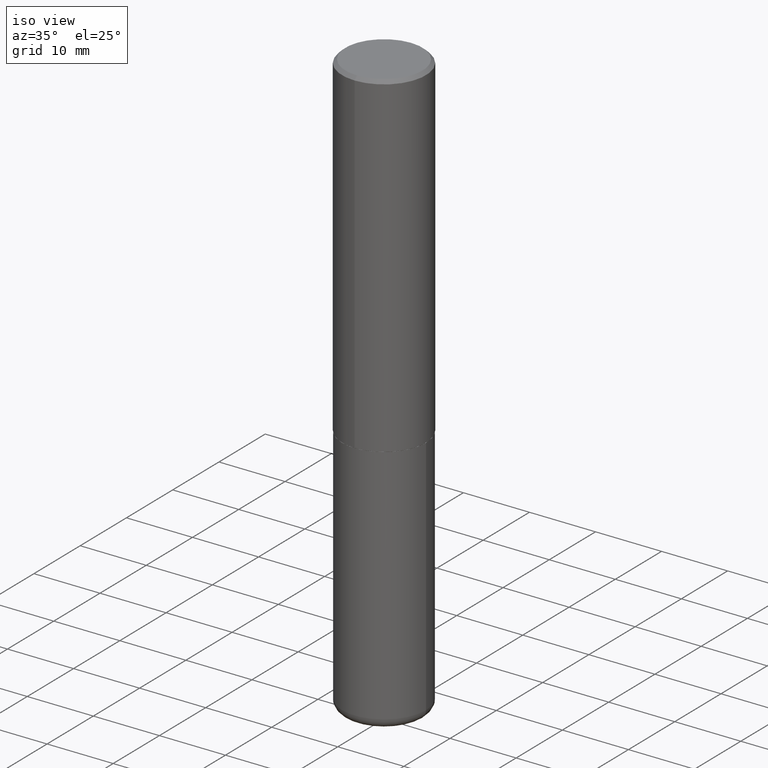
[diagram: clean part render]
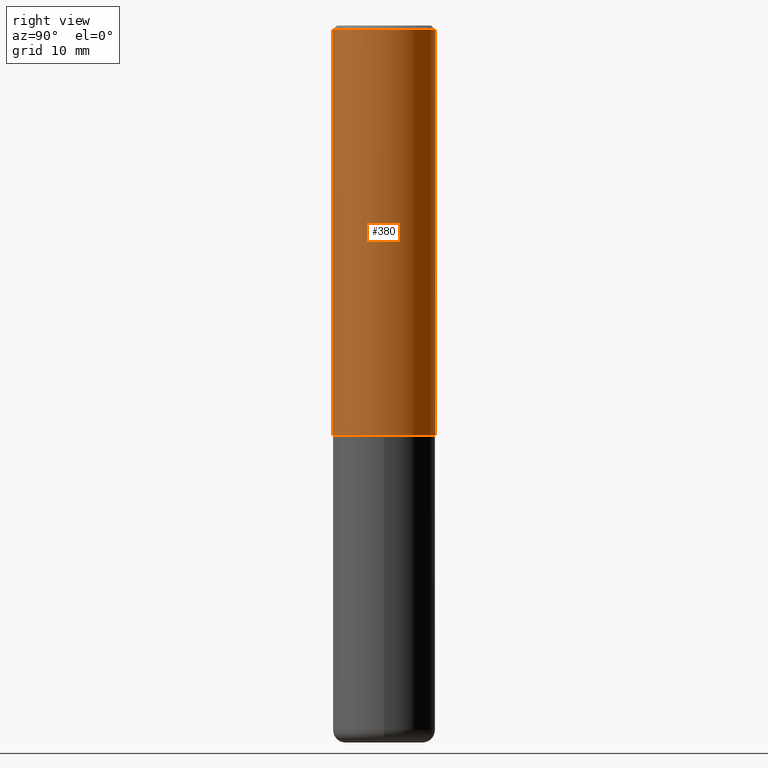
[diagram: tour spotlight — one face highlighted and labeled with its STEP entity id]
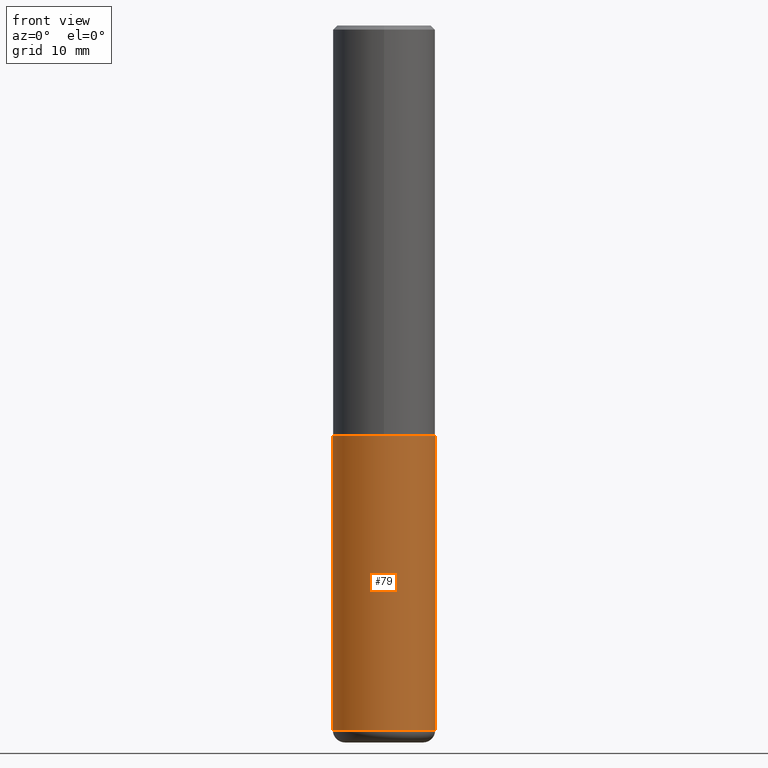
[diagram: tour spotlight — one face highlighted and labeled with its STEP entity id]
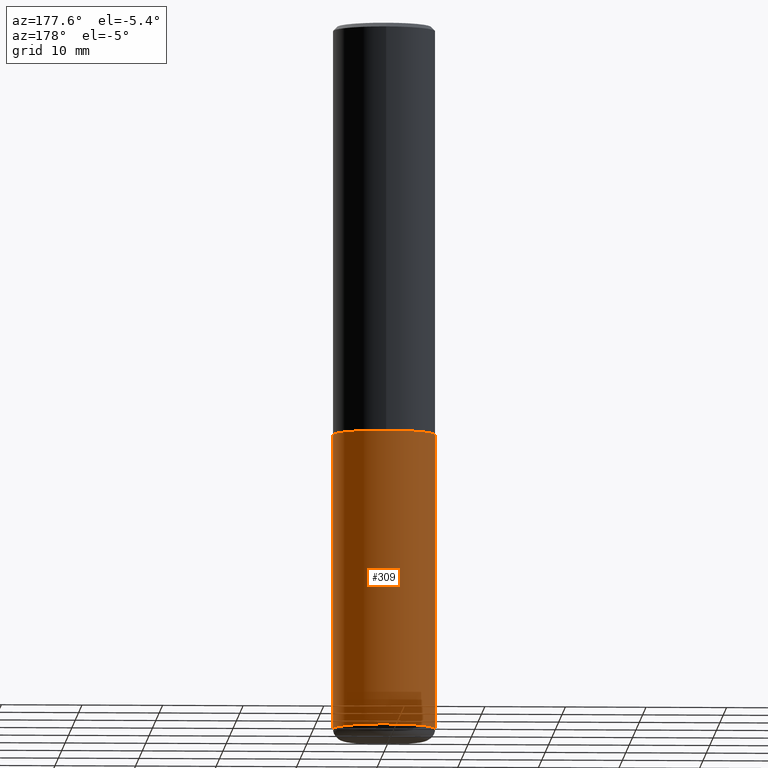
[diagram: tour spotlight — one face highlighted and labeled with its STEP entity id]
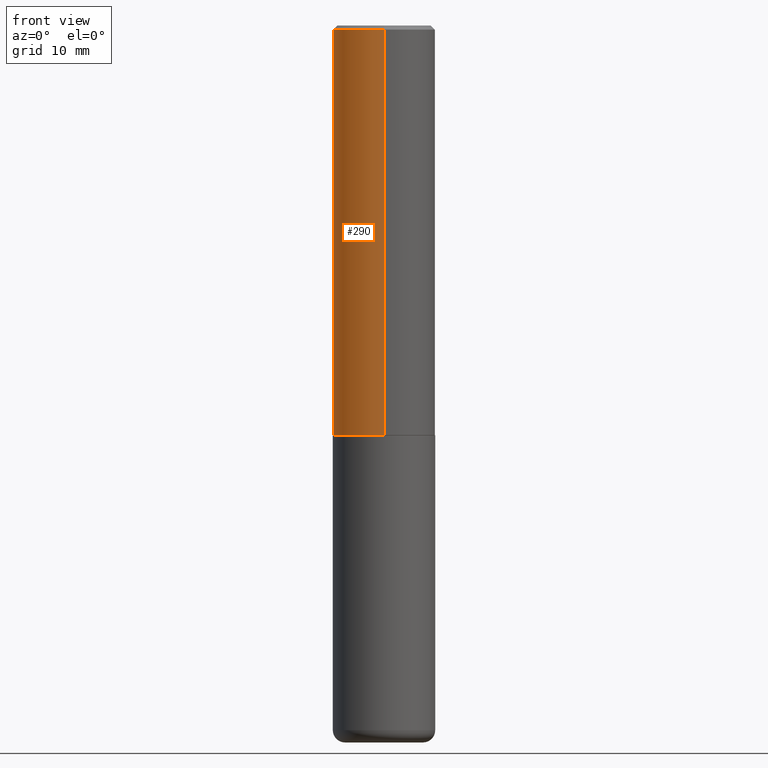
[diagram: tour spotlight — one face highlighted and labeled with its STEP entity id]
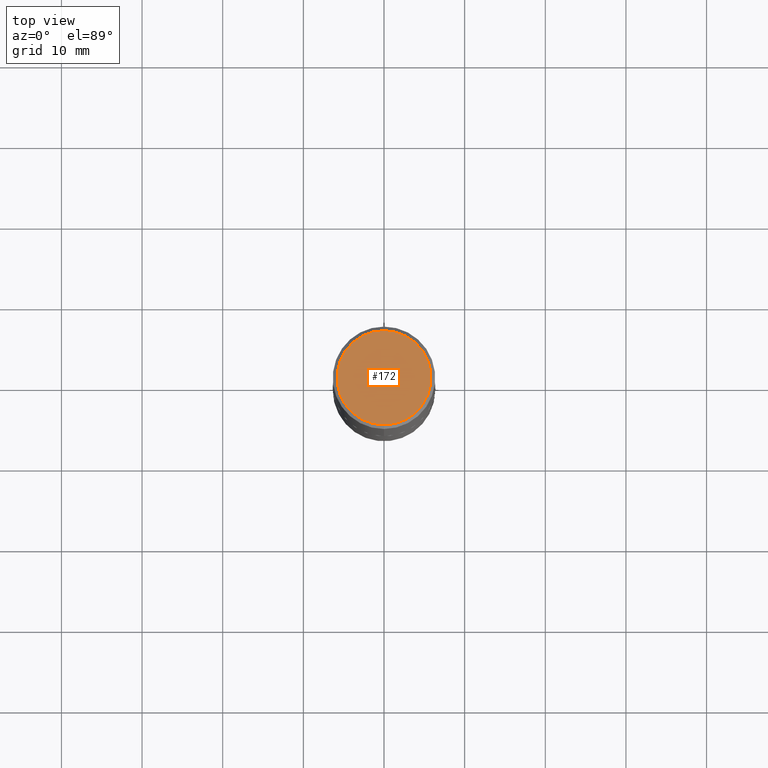
[diagram: tour spotlight — one face highlighted and labeled with its STEP entity id]
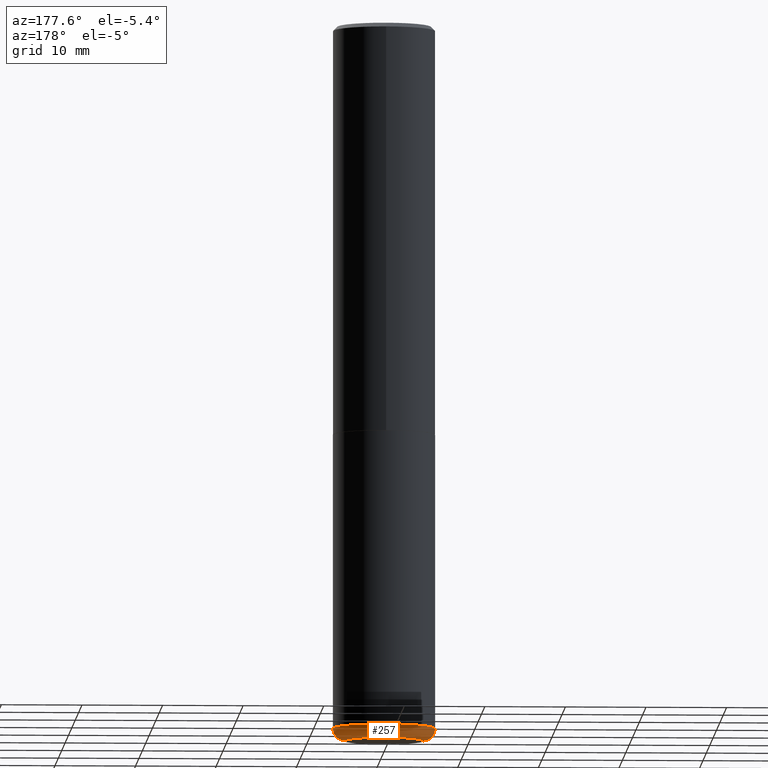
[diagram: tour spotlight — one face highlighted and labeled with its STEP entity id]
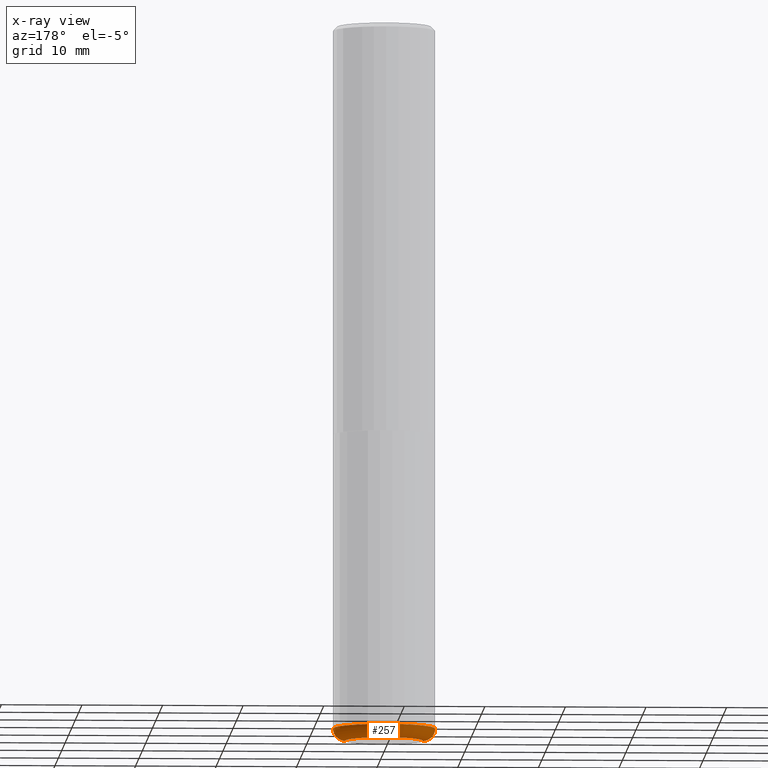
[diagram: x-ray of the same camera — body ghosted, this tour face saturated]
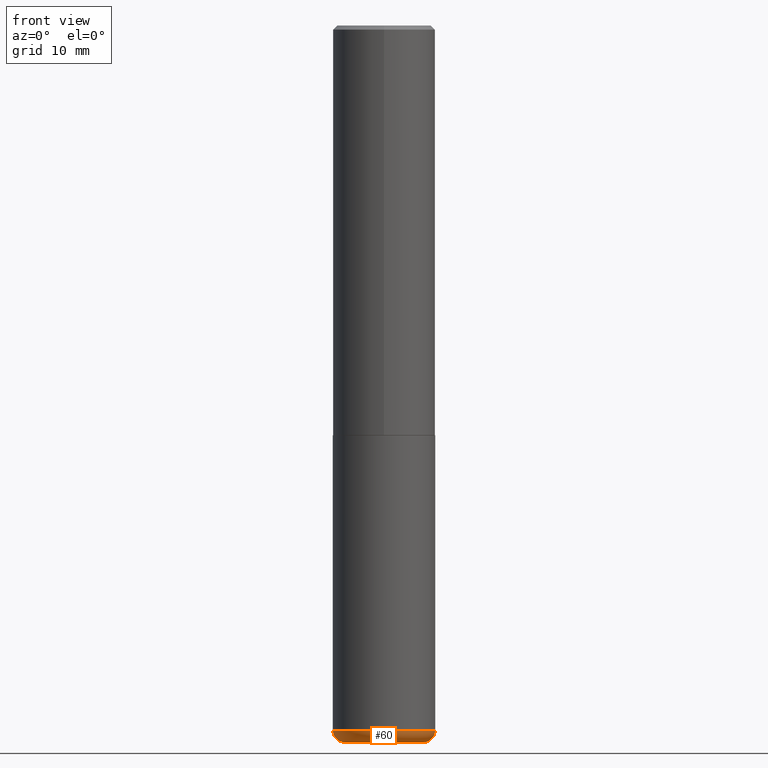
[diagram: tour spotlight — one face highlighted and labeled with its STEP entity id]
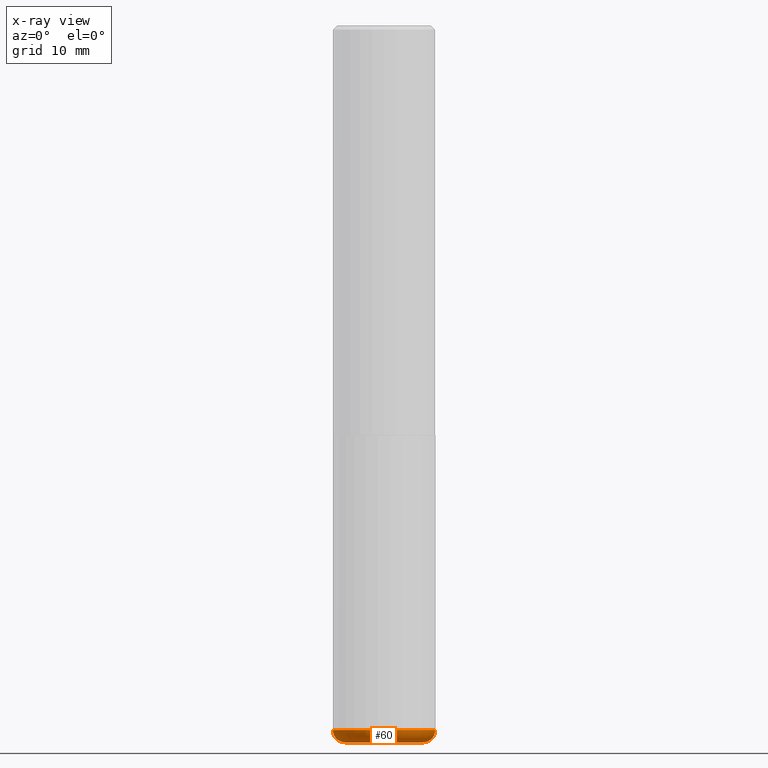
[diagram: x-ray of the same camera — body ghosted, this tour face saturated]
A machine part: a face-by-face anatomy tour. The part has 14 B-rep faces; the first image is the clean iso view, then the 7 largest visible faces are spotlighted one at a time (largest first), each with its STEP entity span.

Face 1 — right view, entity #380. In plain terms, the highlighted cylindrical surface (partial cylindrical patch) has radius 6.35 mm, axis along (-0, 0, 1).
Definition (entity closure, byte-faithful):
#7 = CARTESIAN_POINT ( 'NONE',  ( -1.745740669421519543E-15, -0.2500000000000072720, -1.998999999999999000 ) ) ;
#17 = DIRECTION ( 'NONE',  ( -2.444078991372175563E-29, 3.493471632758652550E-15, 1.000000000000000000 ) ) ;
#18 = ORIENTED_EDGE ( 'NONE', *, *, #42, .T. ) ;
#42 = EDGE_CURVE ( 'NONE', #93, #253, #389, .T. ) ;
#61 = ORIENTED_EDGE ( 'NONE', *, *, #334, .F. ) ;
#86 = CARTESIAN_POINT ( 'NONE',  ( 0.000000000000000000, 0.000000000000000000, 0.000000000000000000 ) ) ;
#92 = CARTESIAN_POINT ( 'NONE',  ( 1.776356839400276103E-15, 0.2499999999999932832, -1.999000000000000776 ) ) ;
#93 = VERTEX_POINT ( 'NONE', #7 ) ;
#105 = ORIENTED_EDGE ( 'NONE', *, *, #340, .T. ) ;
#140 = CARTESIAN_POINT ( 'NONE',  ( 4.885713903752978284E-29, -6.983449793884546288E-15, -1.998999999999999888 ) ) ;
#147 = FACE_OUTER_BOUND ( 'NONE', #248, .T. ) ;
#173 = VERTEX_POINT ( 'NONE', #359 ) ;
#175 = DIRECTION ( 'NONE',  ( -2.444078991372175563E-29, 3.493471632758652550E-15, 1.000000000000000000 ) ) ;
#201 = DIRECTION ( 'NONE',  ( -2.444078991372175563E-29, 3.493471632758652550E-15, 1.000000000000000000 ) ) ;
#202 = DIRECTION ( 'NONE',  ( -6.982962677686265922E-15, -1.000000000000000000, 3.278217592397112312E-15 ) ) ;
#207 = AXIS2_PLACEMENT_3D ( 'NONE', #86, #201, #319 ) ;
#211 = DIRECTION ( 'NONE',  ( -2.444078991372175563E-29, 3.493471632758652550E-15, 1.000000000000000000 ) ) ;
#219 = DIRECTION ( 'NONE',  ( -2.444078991372175563E-29, 3.493471632758652550E-15, 1.000000000000000000 ) ) ;
#225 = ORIENTED_EDGE ( 'NONE', *, *, #233, .F. ) ;
#233 = EDGE_CURVE ( 'NONE', #310, #173, #358, .T. ) ;
#235 = CARTESIAN_POINT ( 'NONE',  ( 1.776356839400251254E-15, 0.2500000000000001110, -8.733679081896635319E-16 ) ) ;
#248 = EDGE_LOOP ( 'NONE', ( #18, #105, #225, #61 ) ) ;
#249 = LINE ( 'NONE', #371, #284 ) ;
#253 = VERTEX_POINT ( 'NONE', #92 ) ;
#275 = CARTESIAN_POINT ( 'NONE',  ( -1.715124499442882496E-15, -0.2500000000000001110, -0.01999999999999921632 ) ) ;
#284 = VECTOR ( 'NONE', #219, 39.37007874015748143 ) ;
#295 = AXIS2_PLACEMENT_3D ( 'NONE', #140, #175, #202 ) ;
#302 = VECTOR ( 'NONE', #17, 39.37007874015748143 ) ;
#310 = VERTEX_POINT ( 'NONE', #275 ) ;
#319 = DIRECTION ( 'NONE',  ( -6.982962677686266711E-15, -1.000000000000000000, 3.493471632758652550E-15 ) ) ;
#322 = CYLINDRICAL_SURFACE ( 'NONE', #207, 0.2500000000000001110 ) ;
#329 = DIRECTION ( 'NONE',  ( -6.982962677686265133E-15, -1.000000000000000000, 3.500180241882336472E-15 ) ) ;
#334 = EDGE_CURVE ( 'NONE', #93, #310, #249, .T. ) ;
#340 = EDGE_CURVE ( 'NONE', #253, #173, #399, .T. ) ;
#358 = CIRCLE ( 'NONE', #367, 0.2500000000000000555 ) ;
#359 = CARTESIAN_POINT ( 'NONE',  ( 1.745740669421567269E-15, 0.2499999999999999722, -0.02000000000000096492 ) ) ;
#367 = AXIS2_PLACEMENT_3D ( 'NONE', #375, #211, #329 ) ;
#371 = CARTESIAN_POINT ( 'NONE',  ( -1.745740669421567467E-15, -0.2500000000000001110, 8.733679081896635319E-16 ) ) ;
#375 = CARTESIAN_POINT ( 'NONE',  ( 4.888157982744373443E-31, -6.986943265517335816E-17, -0.02000000000000009062 ) ) ;
#380 = ADVANCED_FACE ( 'NONE', ( #147 ), #322, .T. ) ;
#389 = CIRCLE ( 'NONE', #295, 0.2500000000000002776 ) ;
#399 = LINE ( 'NONE', #235, #302 ) ;

Face 2 — front view, entity #79. In plain terms, the highlighted cylindrical surface (partial cylindrical patch) has radius 6.35 mm, axis along (-0, 0, 1).
Definition (entity closure, byte-faithful):
#1 = VECTOR ( 'NONE', #250, 39.37007874015748143 ) ;
#6 = EDGE_CURVE ( 'NONE', #164, #407, #315, .T. ) ;
#16 = AXIS2_PLACEMENT_3D ( 'NONE', #128, #95, #413 ) ;
#25 = CIRCLE ( 'NONE', #247, 0.2500000000000000000 ) ;
#36 = CARTESIAN_POINT ( 'NONE',  ( 0.2500000000000000000, -8.728703347107857054E-15, -2.000000000000000000 ) ) ;
#72 = DIRECTION ( 'NONE',  ( -2.445468806185136597E-29, 3.491481338843145583E-15, 1.000000000000000000 ) ) ;
#78 = DIRECTION ( 'NONE',  ( -2.445468806185136877E-29, 3.491481338843145188E-15, 1.000000000000000000 ) ) ;
#79 = ADVANCED_FACE ( 'NONE', ( #326 ), #81, .T. ) ;
#81 = CYLINDRICAL_SURFACE ( 'NONE', #416, 0.2500000000000000000 ) ;
#88 = ORIENTED_EDGE ( 'NONE', *, *, #190, .F. ) ;
#95 = DIRECTION ( 'NONE',  ( -2.445468806185136597E-29, 3.491481338843145583E-15, 1.000000000000000000 ) ) ;
#103 = EDGE_LOOP ( 'NONE', ( #88, #417, #346, #222 ) ) ;
#118 = CARTESIAN_POINT ( 'NONE',  ( 0.2499999999999999722, -1.375643647504198770E-14, -3.439999999999999947 ) ) ;
#127 = VERTEX_POINT ( 'NONE', #392 ) ;
#128 = CARTESIAN_POINT ( 'NONE',  ( 4.890937612370273194E-29, -6.982962677686291165E-15, -2.000000000000000000 ) ) ;
#160 = VECTOR ( 'NONE', #78, 39.37007874015748143 ) ;
#164 = VERTEX_POINT ( 'NONE', #118 ) ;
#166 = CIRCLE ( 'NONE', #16, 0.2500000000000000000 ) ;
#190 = EDGE_CURVE ( 'NONE', #214, #127, #208, .T. ) ;
#208 = LINE ( 'NONE', #216, #1 ) ;
#214 = VERTEX_POINT ( 'NONE', #372 ) ;
#216 = CARTESIAN_POINT ( 'NONE',  ( -0.2500000000000000000, 1.776356839400250465E-15, -1.229733772563726445E-29 ) ) ;
#222 = ORIENTED_EDGE ( 'NONE', *, *, #245, .F. ) ;
#245 = EDGE_CURVE ( 'NONE', #127, #407, #166, .T. ) ;
#247 = AXIS2_PLACEMENT_3D ( 'NONE', #330, #353, #294 ) ;
#250 = DIRECTION ( 'NONE',  ( -2.445468806185136877E-29, 3.491481338843145188E-15, 1.000000000000000000 ) ) ;
#265 = DIRECTION ( 'NONE',  ( 1.000000000000000000, -6.982962677686266711E-15, 4.876176775795935793E-29 ) ) ;
#294 = DIRECTION ( 'NONE',  ( 1.000000000000000000, -6.982962677686270655E-15, 0.000000000000000000 ) ) ;
#297 = CARTESIAN_POINT ( 'NONE',  ( 0.000000000000000000, 0.000000000000000000, 0.000000000000000000 ) ) ;
#315 = LINE ( 'NONE', #318, #160 ) ;
#318 = CARTESIAN_POINT ( 'NONE',  ( 0.2500000000000000000, -1.745740669421566678E-15, 1.219044193948983948E-29 ) ) ;
#326 = FACE_OUTER_BOUND ( 'NONE', #103, .T. ) ;
#330 = CARTESIAN_POINT ( 'NONE',  ( 8.412412693276869938E-29, -1.201069580562042103E-14, -3.439999999999999947 ) ) ;
#346 = ORIENTED_EDGE ( 'NONE', *, *, #6, .T. ) ;
#353 = DIRECTION ( 'NONE',  ( -2.445468806185136597E-29, 3.491481338843145583E-15, 1.000000000000000000 ) ) ;
#372 = CARTESIAN_POINT ( 'NONE',  ( -0.2499999999999999722, -1.023433896622016898E-14, -3.439999999999999947 ) ) ;
#392 = CARTESIAN_POINT ( 'NONE',  ( -0.2500000000000000000, -7.720472402253106025E-15, -2.000000000000000000 ) ) ;
#405 = EDGE_CURVE ( 'NONE', #214, #164, #25, .T. ) ;
#407 = VERTEX_POINT ( 'NONE', #36 ) ;
#413 = DIRECTION ( 'NONE',  ( 1.000000000000000000, -6.982962677686266711E-15, 0.000000000000000000 ) ) ;
#416 = AXIS2_PLACEMENT_3D ( 'NONE', #297, #72, #265 ) ;
#417 = ORIENTED_EDGE ( 'NONE', *, *, #405, .T. ) ;

Face 3 — auxiliary view, entity #309. In plain terms, the highlighted cylindrical surface (partial cylindrical patch) has radius 6.35 mm, axis along (-0, 0, 1).
Definition (entity closure, byte-faithful):
#1 = VECTOR ( 'NONE', #250, 39.37007874015748143 ) ;
#5 = ORIENTED_EDGE ( 'NONE', *, *, #6, .F. ) ;
#6 = EDGE_CURVE ( 'NONE', #164, #407, #315, .T. ) ;
#11 = CARTESIAN_POINT ( 'NONE',  ( 8.412412693276869938E-29, -1.201069580562042103E-14, -3.439999999999999947 ) ) ;
#19 = DIRECTION ( 'NONE',  ( -2.445468806185136597E-29, 3.491481338843145583E-15, 1.000000000000000000 ) ) ;
#36 = CARTESIAN_POINT ( 'NONE',  ( 0.2500000000000000000, -8.728703347107857054E-15, -2.000000000000000000 ) ) ;
#39 = DIRECTION ( 'NONE',  ( 1.000000000000000000, -6.982962677686266711E-15, 0.000000000000000000 ) ) ;
#43 = CARTESIAN_POINT ( 'NONE',  ( 4.890937612370273194E-29, -6.982962677686291165E-15, -2.000000000000000000 ) ) ;
#74 = CIRCLE ( 'NONE', #90, 0.2500000000000000000 ) ;
#78 = DIRECTION ( 'NONE',  ( -2.445468806185136877E-29, 3.491481338843145188E-15, 1.000000000000000000 ) ) ;
#90 = AXIS2_PLACEMENT_3D ( 'NONE', #43, #321, #39 ) ;
#96 = EDGE_LOOP ( 'NONE', ( #156, #163, #379, #5 ) ) ;
#99 = FACE_OUTER_BOUND ( 'NONE', #96, .T. ) ;
#118 = CARTESIAN_POINT ( 'NONE',  ( 0.2499999999999999722, -1.375643647504198770E-14, -3.439999999999999947 ) ) ;
#127 = VERTEX_POINT ( 'NONE', #392 ) ;
#129 = EDGE_CURVE ( 'NONE', #407, #127, #74, .T. ) ;
#144 = AXIS2_PLACEMENT_3D ( 'NONE', #192, #19, #151 ) ;
#151 = DIRECTION ( 'NONE',  ( 1.000000000000000000, -6.982962677686266711E-15, 4.876176775795935793E-29 ) ) ;
#153 = AXIS2_PLACEMENT_3D ( 'NONE', #11, #171, #360 ) ;
#156 = ORIENTED_EDGE ( 'NONE', *, *, #344, .T. ) ;
#160 = VECTOR ( 'NONE', #78, 39.37007874015748143 ) ;
#163 = ORIENTED_EDGE ( 'NONE', *, *, #190, .T. ) ;
#164 = VERTEX_POINT ( 'NONE', #118 ) ;
#171 = DIRECTION ( 'NONE',  ( -2.445468806185136597E-29, 3.491481338843145583E-15, 1.000000000000000000 ) ) ;
#190 = EDGE_CURVE ( 'NONE', #214, #127, #208, .T. ) ;
#192 = CARTESIAN_POINT ( 'NONE',  ( 0.000000000000000000, 0.000000000000000000, 0.000000000000000000 ) ) ;
#208 = LINE ( 'NONE', #216, #1 ) ;
#214 = VERTEX_POINT ( 'NONE', #372 ) ;
#216 = CARTESIAN_POINT ( 'NONE',  ( -0.2500000000000000000, 1.776356839400250465E-15, -1.229733772563726445E-29 ) ) ;
#224 = CYLINDRICAL_SURFACE ( 'NONE', #144, 0.2500000000000000000 ) ;
#250 = DIRECTION ( 'NONE',  ( -2.445468806185136877E-29, 3.491481338843145188E-15, 1.000000000000000000 ) ) ;
#309 = ADVANCED_FACE ( 'NONE', ( #99 ), #224, .T. ) ;
#315 = LINE ( 'NONE', #318, #160 ) ;
#318 = CARTESIAN_POINT ( 'NONE',  ( 0.2500000000000000000, -1.745740669421566678E-15, 1.219044193948983948E-29 ) ) ;
#321 = DIRECTION ( 'NONE',  ( -2.445468806185136597E-29, 3.491481338843145583E-15, 1.000000000000000000 ) ) ;
#325 = CIRCLE ( 'NONE', #153, 0.2500000000000000000 ) ;
#344 = EDGE_CURVE ( 'NONE', #164, #214, #325, .T. ) ;
#360 = DIRECTION ( 'NONE',  ( 1.000000000000000000, -6.982962677686270655E-15, 0.000000000000000000 ) ) ;
#372 = CARTESIAN_POINT ( 'NONE',  ( -0.2499999999999999722, -1.023433896622016898E-14, -3.439999999999999947 ) ) ;
#379 = ORIENTED_EDGE ( 'NONE', *, *, #129, .F. ) ;
#392 = CARTESIAN_POINT ( 'NONE',  ( -0.2500000000000000000, -7.720472402253106025E-15, -2.000000000000000000 ) ) ;
#407 = VERTEX_POINT ( 'NONE', #36 ) ;

Face 4 — front view, entity #290. In plain terms, the highlighted cylindrical surface (partial cylindrical patch) has radius 6.35 mm, axis along (-0, 0, 1).
Definition (entity closure, byte-faithful):
#7 = CARTESIAN_POINT ( 'NONE',  ( -1.745740669421519543E-15, -0.2500000000000072720, -1.998999999999999000 ) ) ;
#17 = DIRECTION ( 'NONE',  ( -2.444078991372175563E-29, 3.493471632758652550E-15, 1.000000000000000000 ) ) ;
#26 = DIRECTION ( 'NONE',  ( -2.444078991372175563E-29, 3.493471632758652550E-15, 1.000000000000000000 ) ) ;
#59 = DIRECTION ( 'NONE',  ( -6.982962677686265922E-15, -1.000000000000000000, 3.278217592397112312E-15 ) ) ;
#68 = ORIENTED_EDGE ( 'NONE', *, *, #334, .T. ) ;
#92 = CARTESIAN_POINT ( 'NONE',  ( 1.776356839400276103E-15, 0.2499999999999932832, -1.999000000000000776 ) ) ;
#93 = VERTEX_POINT ( 'NONE', #7 ) ;
#173 = VERTEX_POINT ( 'NONE', #359 ) ;
#179 = ORIENTED_EDGE ( 'NONE', *, *, #206, .T. ) ;
#182 = AXIS2_PLACEMENT_3D ( 'NONE', #378, #341, #246 ) ;
#187 = CARTESIAN_POINT ( 'NONE',  ( 4.885713903752978284E-29, -6.983449793884546288E-15, -1.998999999999999888 ) ) ;
#189 = AXIS2_PLACEMENT_3D ( 'NONE', #272, #242, #364 ) ;
#206 = EDGE_CURVE ( 'NONE', #253, #93, #314, .T. ) ;
#219 = DIRECTION ( 'NONE',  ( -2.444078991372175563E-29, 3.493471632758652550E-15, 1.000000000000000000 ) ) ;
#235 = CARTESIAN_POINT ( 'NONE',  ( 1.776356839400251254E-15, 0.2500000000000001110, -8.733679081896635319E-16 ) ) ;
#240 = ORIENTED_EDGE ( 'NONE', *, *, #362, .F. ) ;
#242 = DIRECTION ( 'NONE',  ( -2.444078991372175563E-29, 3.493471632758652550E-15, 1.000000000000000000 ) ) ;
#246 = DIRECTION ( 'NONE',  ( -6.982962677686266711E-15, -1.000000000000000000, 3.493471632758652550E-15 ) ) ;
#249 = LINE ( 'NONE', #371, #284 ) ;
#253 = VERTEX_POINT ( 'NONE', #92 ) ;
#255 = CYLINDRICAL_SURFACE ( 'NONE', #182, 0.2500000000000001110 ) ;
#270 = ORIENTED_EDGE ( 'NONE', *, *, #340, .F. ) ;
#272 = CARTESIAN_POINT ( 'NONE',  ( 4.888157982744373443E-31, -6.986943265517335816E-17, -0.02000000000000009062 ) ) ;
#275 = CARTESIAN_POINT ( 'NONE',  ( -1.715124499442882496E-15, -0.2500000000000001110, -0.01999999999999921632 ) ) ;
#284 = VECTOR ( 'NONE', #219, 39.37007874015748143 ) ;
#290 = ADVANCED_FACE ( 'NONE', ( #415 ), #255, .T. ) ;
#302 = VECTOR ( 'NONE', #17, 39.37007874015748143 ) ;
#310 = VERTEX_POINT ( 'NONE', #275 ) ;
#314 = CIRCLE ( 'NONE', #374, 0.2500000000000002776 ) ;
#334 = EDGE_CURVE ( 'NONE', #93, #310, #249, .T. ) ;
#340 = EDGE_CURVE ( 'NONE', #253, #173, #399, .T. ) ;
#341 = DIRECTION ( 'NONE',  ( -2.444078991372175563E-29, 3.493471632758652550E-15, 1.000000000000000000 ) ) ;
#359 = CARTESIAN_POINT ( 'NONE',  ( 1.745740669421567269E-15, 0.2499999999999999722, -0.02000000000000096492 ) ) ;
#362 = EDGE_CURVE ( 'NONE', #173, #310, #408, .T. ) ;
#364 = DIRECTION ( 'NONE',  ( -6.982962677686265133E-15, -1.000000000000000000, 3.500180241882336472E-15 ) ) ;
#371 = CARTESIAN_POINT ( 'NONE',  ( -1.745740669421567467E-15, -0.2500000000000001110, 8.733679081896635319E-16 ) ) ;
#374 = AXIS2_PLACEMENT_3D ( 'NONE', #187, #26, #59 ) ;
#378 = CARTESIAN_POINT ( 'NONE',  ( 0.000000000000000000, 0.000000000000000000, 0.000000000000000000 ) ) ;
#399 = LINE ( 'NONE', #235, #302 ) ;
#403 = EDGE_LOOP ( 'NONE', ( #270, #179, #68, #240 ) ) ;
#408 = CIRCLE ( 'NONE', #189, 0.2500000000000000555 ) ;
#415 = FACE_OUTER_BOUND ( 'NONE', #403, .T. ) ;

Face 5 — top view, entity #172. In plain terms, the highlighted planar face has unit normal (0, -0, -1).
Definition (entity closure, byte-faithful):
#10 = DIRECTION ( 'NONE',  ( 2.444078991372175283E-29, -3.493471632758652550E-15, -1.000000000000000000 ) ) ;
#14 = DIRECTION ( 'NONE',  ( -6.982962677686265922E-15, -1.000000000000000000, 3.493471632758652550E-15 ) ) ;
#21 = VERTEX_POINT ( 'NONE', #145 ) ;
#22 = DIRECTION ( 'NONE',  ( -2.444078991372175563E-29, 3.493471632758652550E-15, 1.000000000000000000 ) ) ;
#37 = EDGE_CURVE ( 'NONE', #58, #21, #69, .T. ) ;
#45 = AXIS2_PLACEMENT_3D ( 'NONE', #298, #85, #14 ) ;
#58 = VERTEX_POINT ( 'NONE', #266 ) ;
#65 = AXIS2_PLACEMENT_3D ( 'NONE', #215, #22, #126 ) ;
#69 = CIRCLE ( 'NONE', #45, 0.2299999999999997047 ) ;
#85 = DIRECTION ( 'NONE',  ( -2.444078991372175563E-29, 3.493471632758652550E-15, 1.000000000000000000 ) ) ;
#126 = DIRECTION ( 'NONE',  ( -6.982962677686265922E-15, -1.000000000000000000, 3.493471632758652550E-15 ) ) ;
#130 = EDGE_LOOP ( 'NONE', ( #385, #412 ) ) ;
#145 = CARTESIAN_POINT ( 'NONE',  ( -1.646519519465166376E-15, -0.2299999999999997047, 1.115557654912385711E-15 ) ) ;
#172 = ADVANCED_FACE ( 'NONE', ( #268 ), #390, .F. ) ;
#215 = CARTESIAN_POINT ( 'NONE',  ( -7.626972843823584403E-45, 1.090169890898625670E-30, 3.120591793778966343E-16 ) ) ;
#237 = DIRECTION ( 'NONE',  ( 6.982962677686265922E-15, 1.000000000000000000, -3.493471632758652550E-15 ) ) ;
#266 = CARTESIAN_POINT ( 'NONE',  ( 1.675911042644703182E-15, 0.2299999999999997047, -4.914392961565924424E-16 ) ) ;
#268 = FACE_OUTER_BOUND ( 'NONE', #130, .T. ) ;
#298 = CARTESIAN_POINT ( 'NONE',  ( -7.626972843823584403E-45, 1.090169890898625670E-30, 3.120591793778966343E-16 ) ) ;
#323 = EDGE_CURVE ( 'NONE', #21, #58, #382, .T. ) ;
#324 = CARTESIAN_POINT ( 'NONE',  ( 1.606081415867839095E-15, 0.2299999999999997047, -6.474688858455407103E-16 ) ) ;
#382 = CIRCLE ( 'NONE', #65, 0.2299999999999997047 ) ;
#385 = ORIENTED_EDGE ( 'NONE', *, *, #37, .T. ) ;
#390 = PLANE ( 'NONE',  #406 ) ;
#406 = AXIS2_PLACEMENT_3D ( 'NONE', #324, #10, #237 ) ;
#412 = ORIENTED_EDGE ( 'NONE', *, *, #323, .T. ) ;

Face 6 — auxiliary view, entity #257. An x-ray twin of the same camera follows (body ghosted, this face saturated) — the face is partly hidden behind the body. In plain terms, the highlighted toroidal blend (fillet) surface has major radius 4.826 mm and minor (blend) radius 1.524 mm.
Definition (entity closure, byte-faithful):
#11 = CARTESIAN_POINT ( 'NONE',  ( 8.412412693276869938E-29, -1.201069580562042103E-14, -3.439999999999999947 ) ) ;
#23 = FACE_OUTER_BOUND ( 'NONE', #51, .T. ) ;
#29 = DIRECTION ( 'NONE',  ( -2.445468806185136597E-29, 3.491481338843145583E-15, 1.000000000000000000 ) ) ;
#31 = CIRCLE ( 'NONE', #342, 0.1899999999999999745 ) ;
#34 = CIRCLE ( 'NONE', #331, 0.05999999999999994227 ) ;
#40 = EDGE_CURVE ( 'NONE', #256, #198, #31, .T. ) ;
#51 = EDGE_LOOP ( 'NONE', ( #328, #243, #139, #152 ) ) ;
#56 = DIRECTION ( 'NONE',  ( -6.982962677686266711E-15, -1.000000000000000000, 3.491481338843145583E-15 ) ) ;
#66 = CARTESIAN_POINT ( 'NONE',  ( 8.412412693276869938E-29, -1.201069580562042103E-14, -3.439999999999999947 ) ) ;
#87 = EDGE_CURVE ( 'NONE', #198, #214, #34, .T. ) ;
#94 = CARTESIAN_POINT ( 'NONE',  ( 0.1899999999999999745, -1.333745871438081265E-14, -3.439999999999999947 ) ) ;
#108 = DIRECTION ( 'NONE',  ( -1.000000000000000000, 7.105427357600997914E-15, 0.000000000000000000 ) ) ;
#118 = CARTESIAN_POINT ( 'NONE',  ( 0.2499999999999999722, -1.375643647504198770E-14, -3.439999999999999947 ) ) ;
#123 = CIRCLE ( 'NONE', #300, 0.05999999999999994227 ) ;
#131 = DIRECTION ( 'NONE',  ( 1.000000000000000000, -6.982962677686274599E-15, 0.000000000000000000 ) ) ;
#139 = ORIENTED_EDGE ( 'NONE', *, *, #344, .F. ) ;
#152 = ORIENTED_EDGE ( 'NONE', *, *, #252, .F. ) ;
#153 = AXIS2_PLACEMENT_3D ( 'NONE', #11, #171, #360 ) ;
#157 = DIRECTION ( 'NONE',  ( 1.000000000000000000, -6.982962677686265133E-15, 4.883557194083112340E-29 ) ) ;
#164 = VERTEX_POINT ( 'NONE', #118 ) ;
#171 = DIRECTION ( 'NONE',  ( -2.445468806185136597E-29, 3.491481338843145583E-15, 1.000000000000000000 ) ) ;
#180 = TOROIDAL_SURFACE ( 'NONE', #229, 0.1899999999999999745, 0.05999999999999995615 ) ;
#196 = CARTESIAN_POINT ( 'NONE',  ( 8.559140821647976968E-29, -1.222018468595100934E-14, -3.500000000000000000 ) ) ;
#198 = VERTEX_POINT ( 'NONE', #244 ) ;
#209 = DIRECTION ( 'NONE',  ( -2.445468806185136597E-29, 3.491481338843145583E-15, 1.000000000000000000 ) ) ;
#214 = VERTEX_POINT ( 'NONE', #372 ) ;
#220 = CARTESIAN_POINT ( 'NONE',  ( 0.1899999999999999745, -1.354694759471140096E-14, -3.500000000000000000 ) ) ;
#229 = AXIS2_PLACEMENT_3D ( 'NONE', #66, #29, #157 ) ;
#234 = CARTESIAN_POINT ( 'NONE',  ( -0.1899999999999999745, -1.066066460767623105E-14, -3.439999999999999947 ) ) ;
#243 = ORIENTED_EDGE ( 'NONE', *, *, #87, .T. ) ;
#244 = CARTESIAN_POINT ( 'NONE',  ( -0.1899999999999999745, -1.055224622711349575E-14, -3.500000000000000000 ) ) ;
#252 = EDGE_CURVE ( 'NONE', #256, #164, #123, .T. ) ;
#256 = VERTEX_POINT ( 'NONE', #220 ) ;
#257 = ADVANCED_FACE ( 'NONE', ( #23 ), #180, .T. ) ;
#263 = DIRECTION ( 'NONE',  ( 7.105427357601001859E-15, 1.000000000000000000, -3.491481338843145583E-15 ) ) ;
#300 = AXIS2_PLACEMENT_3D ( 'NONE', #94, #56, #131 ) ;
#325 = CIRCLE ( 'NONE', #153, 0.2500000000000000000 ) ;
#328 = ORIENTED_EDGE ( 'NONE', *, *, #40, .T. ) ;
#331 = AXIS2_PLACEMENT_3D ( 'NONE', #234, #263, #108 ) ;
#342 = AXIS2_PLACEMENT_3D ( 'NONE', #196, #209, #347 ) ;
#344 = EDGE_CURVE ( 'NONE', #164, #214, #325, .T. ) ;
#347 = DIRECTION ( 'NONE',  ( 1.000000000000000000, -6.982962677686273021E-15, 0.000000000000000000 ) ) ;
#360 = DIRECTION ( 'NONE',  ( 1.000000000000000000, -6.982962677686270655E-15, 0.000000000000000000 ) ) ;
#372 = CARTESIAN_POINT ( 'NONE',  ( -0.2499999999999999722, -1.023433896622016898E-14, -3.439999999999999947 ) ) ;

Face 7 — front view, entity #60. An x-ray twin of the same camera follows (body ghosted, this face saturated) — the face is partly hidden behind the body. In plain terms, the highlighted toroidal blend (fillet) surface has major radius 4.826 mm and minor (blend) radius 1.524 mm.
Definition (entity closure, byte-faithful):
#25 = CIRCLE ( 'NONE', #247, 0.2500000000000000000 ) ;
#34 = CIRCLE ( 'NONE', #331, 0.05999999999999994227 ) ;
#48 = CARTESIAN_POINT ( 'NONE',  ( 8.559140821647976968E-29, -1.222018468595100934E-14, -3.500000000000000000 ) ) ;
#56 = DIRECTION ( 'NONE',  ( -6.982962677686266711E-15, -1.000000000000000000, 3.491481338843145583E-15 ) ) ;
#60 = ADVANCED_FACE ( 'NONE', ( #170 ), #381, .T. ) ;
#87 = EDGE_CURVE ( 'NONE', #198, #214, #34, .T. ) ;
#91 = CIRCLE ( 'NONE', #132, 0.1899999999999999745 ) ;
#94 = CARTESIAN_POINT ( 'NONE',  ( 0.1899999999999999745, -1.333745871438081265E-14, -3.439999999999999947 ) ) ;
#108 = DIRECTION ( 'NONE',  ( -1.000000000000000000, 7.105427357600997914E-15, 0.000000000000000000 ) ) ;
#116 = DIRECTION ( 'NONE',  ( 1.000000000000000000, -6.982962677686265133E-15, 4.883557194083112340E-29 ) ) ;
#118 = CARTESIAN_POINT ( 'NONE',  ( 0.2499999999999999722, -1.375643647504198770E-14, -3.439999999999999947 ) ) ;
#119 = DIRECTION ( 'NONE',  ( 1.000000000000000000, -6.982962677686273021E-15, 0.000000000000000000 ) ) ;
#123 = CIRCLE ( 'NONE', #300, 0.05999999999999994227 ) ;
#131 = DIRECTION ( 'NONE',  ( 1.000000000000000000, -6.982962677686274599E-15, 0.000000000000000000 ) ) ;
#132 = AXIS2_PLACEMENT_3D ( 'NONE', #48, #142, #119 ) ;
#134 = ORIENTED_EDGE ( 'NONE', *, *, #405, .F. ) ;
#142 = DIRECTION ( 'NONE',  ( -2.445468806185136597E-29, 3.491481338843145583E-15, 1.000000000000000000 ) ) ;
#162 = ORIENTED_EDGE ( 'NONE', *, *, #87, .F. ) ;
#164 = VERTEX_POINT ( 'NONE', #118 ) ;
#170 = FACE_OUTER_BOUND ( 'NONE', #368, .T. ) ;
#198 = VERTEX_POINT ( 'NONE', #244 ) ;
#205 = AXIS2_PLACEMENT_3D ( 'NONE', #232, #356, #116 ) ;
#214 = VERTEX_POINT ( 'NONE', #372 ) ;
#220 = CARTESIAN_POINT ( 'NONE',  ( 0.1899999999999999745, -1.354694759471140096E-14, -3.500000000000000000 ) ) ;
#221 = ORIENTED_EDGE ( 'NONE', *, *, #252, .T. ) ;
#232 = CARTESIAN_POINT ( 'NONE',  ( 8.412412693276869938E-29, -1.201069580562042103E-14, -3.439999999999999947 ) ) ;
#234 = CARTESIAN_POINT ( 'NONE',  ( -0.1899999999999999745, -1.066066460767623105E-14, -3.439999999999999947 ) ) ;
#244 = CARTESIAN_POINT ( 'NONE',  ( -0.1899999999999999745, -1.055224622711349575E-14, -3.500000000000000000 ) ) ;
#247 = AXIS2_PLACEMENT_3D ( 'NONE', #330, #353, #294 ) ;
#252 = EDGE_CURVE ( 'NONE', #256, #164, #123, .T. ) ;
#256 = VERTEX_POINT ( 'NONE', #220 ) ;
#263 = DIRECTION ( 'NONE',  ( 7.105427357601001859E-15, 1.000000000000000000, -3.491481338843145583E-15 ) ) ;
#273 = ORIENTED_EDGE ( 'NONE', *, *, #373, .T. ) ;
#294 = DIRECTION ( 'NONE',  ( 1.000000000000000000, -6.982962677686270655E-15, 0.000000000000000000 ) ) ;
#300 = AXIS2_PLACEMENT_3D ( 'NONE', #94, #56, #131 ) ;
#330 = CARTESIAN_POINT ( 'NONE',  ( 8.412412693276869938E-29, -1.201069580562042103E-14, -3.439999999999999947 ) ) ;
#331 = AXIS2_PLACEMENT_3D ( 'NONE', #234, #263, #108 ) ;
#353 = DIRECTION ( 'NONE',  ( -2.445468806185136597E-29, 3.491481338843145583E-15, 1.000000000000000000 ) ) ;
#356 = DIRECTION ( 'NONE',  ( -2.445468806185136597E-29, 3.491481338843145583E-15, 1.000000000000000000 ) ) ;
#368 = EDGE_LOOP ( 'NONE', ( #162, #273, #221, #134 ) ) ;
#372 = CARTESIAN_POINT ( 'NONE',  ( -0.2499999999999999722, -1.023433896622016898E-14, -3.439999999999999947 ) ) ;
#373 = EDGE_CURVE ( 'NONE', #198, #256, #91, .T. ) ;
#381 = TOROIDAL_SURFACE ( 'NONE', #205, 0.1899999999999999745, 0.05999999999999995615 ) ;
#405 = EDGE_CURVE ( 'NONE', #214, #164, #25, .T. ) ;